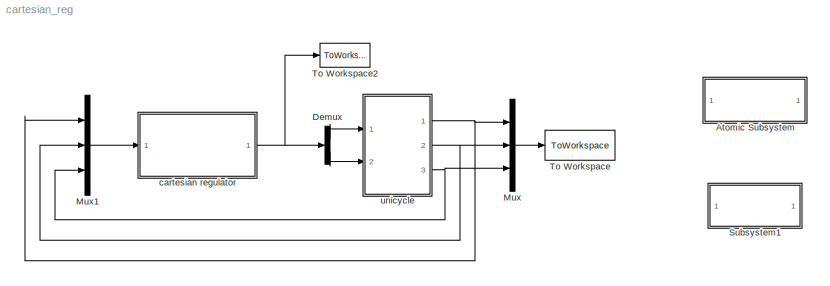
MODEL cartesian_reg
KIND model
BLOCK [SubSystem] Atomic Subsystem
  OpenFcn = init
  Ports = []
  RequestExecContextInheritance = off
  SID = 26
  TreatAsAtomicUnit = on
  Variant = off
BLOCK [Demux] Demux
  DisplayOption = bar
  Outputs = 2
  Ports = [1, 2]
  SID = 1
BLOCK [Mux] Mux
  DisplayOption = bar
  Inputs = 3
  Ports = [3, 1]
  SID = 2
BLOCK [Mux] Mux1
  DisplayOption = bar
  Inputs = 3
  Ports = [3, 1]
  SID = 3
BLOCK [SubSystem] Subsystem1
  OpenFcn = plots
  Ports = []
  RequestExecContextInheritance = off
  SID = 4
  ShowPortLabels = none
  Variant = off
BLOCK [ToWorkspace] To Workspace
  MaxDataPoints = inf
  Ports = [1]
  SID = 6
  SampleTime = -1
  SaveFormat = Structure With Time
  VariableName = configuration
BLOCK [ToWorkspace] To Workspace2
  MaxDataPoints = inf
  Ports = [1]
  SID = 7
  SampleTime = -1
  SaveFormat = Structure With Time
  VariableName = inputs
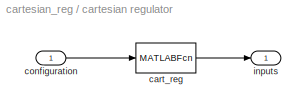
BLOCK [SubSystem] cartesian regulator
  Ports = [1, 1]
  RequestExecContextInheritance = off
  SID = 8
  Variant = off
BLOCK [MATLABFcn] cartesian regulator/cart_reg
  Description = cartesian regulator
  MATLABFcn = cart_reg(u)
  Output1D = off
  Ports = [1, 1]
  SID = 10
  Tag = {'prova'}
BLOCK [Inport] cartesian regulator/configuration
  IconDisplay = Port number
  SID = 9
BLOCK [Outport] cartesian regulator/inputs
  IconDisplay = Port number
  SID = 11
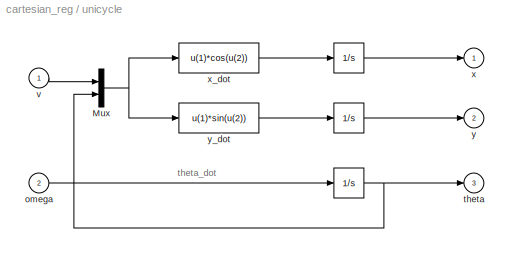
BLOCK [SubSystem] unicycle
  Ports = [2, 3]
  RequestExecContextInheritance = off
  SID = 12
  Variant = off
BLOCK [Integrator] unicycle/ 
  InitialCondition = theta_0
  Ports = [1, 1]
  SID = 15
BLOCK [Integrator] unicycle/   
  InitialCondition = x_0
  Ports = [1, 1]
  SID = 16
BLOCK [Integrator] unicycle/    
  InitialCondition = y_0
  Ports = [1, 1]
  SID = 17
BLOCK [Mux] unicycle/Mux
  DisplayOption = bar
  Inputs = 2
  Ports = [2, 1]
  SID = 18
BLOCK [Inport] unicycle/omega
  IconDisplay = Port number
  Port = 2
  SID = 14
BLOCK [Outport] unicycle/theta
  IconDisplay = Port number
  Port = 3
  SID = 23
BLOCK [Inport] unicycle/v
  IconDisplay = Port number
  SID = 13
BLOCK [Outport] unicycle/x
  IconDisplay = Port number
  SID = 21
BLOCK [Fcn] unicycle/x_dot
  Expr = u(1)*cos(u(2))
  SID = 19
BLOCK [Outport] unicycle/y
  IconDisplay = Port number
  Port = 2
  SID = 22
BLOCK [Fcn] unicycle/y_dot
  Expr = u(1)*sin(u(2))
  SID = 20
ANNOTATION unicycle: theta_dot
LINE Demux:1 -> unicycle:1
LINE Demux:2 -> unicycle:2
LINE Mux1:1 -> cartesian regulator:1
LINE Mux:1 -> To Workspace:1
LINE cartesian regulator/cart_reg:1 -> cartesian regulator/inputs:1
LINE cartesian regulator/configuration:1 -> cartesian regulator/cart_reg:1
NET cartesian regulator:1 -> Demux:1, To Workspace2:1
LINE unicycle/    :1 -> unicycle/y:1
LINE unicycle/   :1 -> unicycle/x:1
NET unicycle/ :1 -> unicycle/Mux:2, unicycle/theta:1
NET unicycle/Mux:1 -> unicycle/x_dot:1, unicycle/y_dot:1
LINE unicycle/omega:1 -> unicycle/ :1
LINE unicycle/v:1 -> unicycle/Mux:1
LINE unicycle/x_dot:1 -> unicycle/   :1
LINE unicycle/y_dot:1 -> unicycle/    :1
NET unicycle:1 -> Mux1:1, Mux:1
NET unicycle:2 -> Mux1:2, Mux:2
NET unicycle:3 -> Mux1:3, Mux:3
note: NET lines group one-source signal fan-out (src -> all destinations, sorted); 1:1 wires keep LINE
